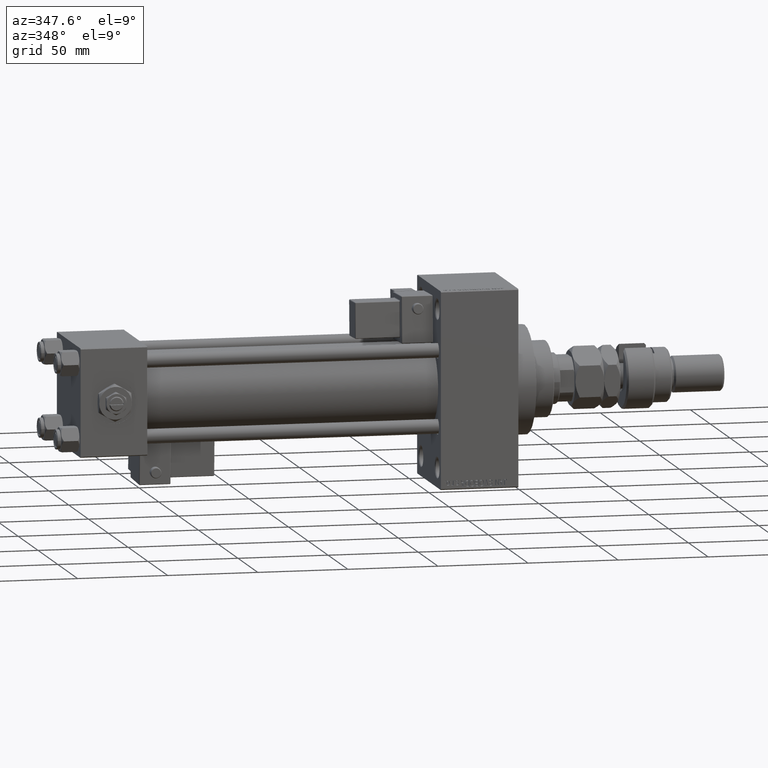
[diagram: clean part render]
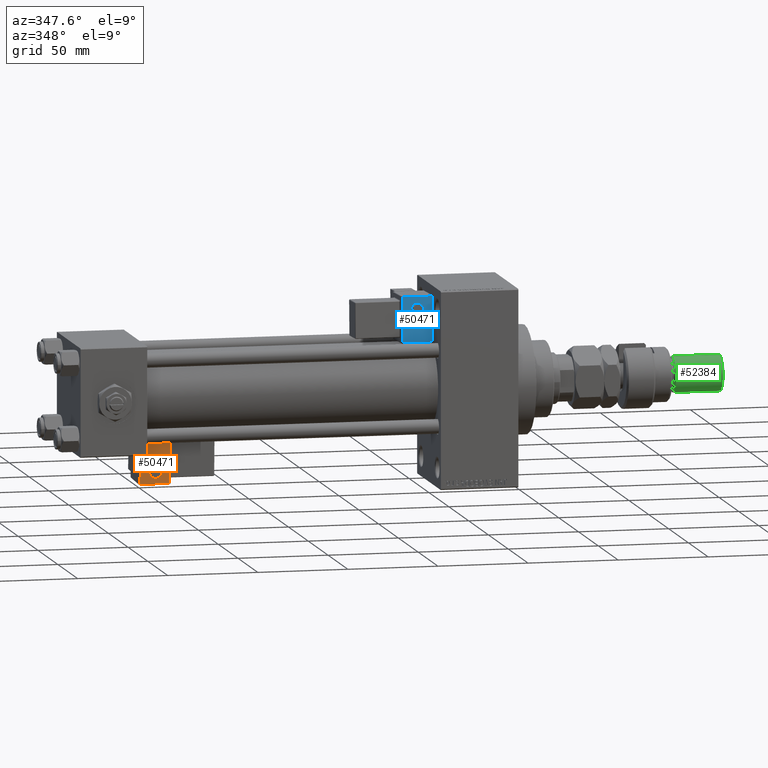
[diagram: same view with three faces highlighted in distinct colors, each labeled with its STEP entity id]
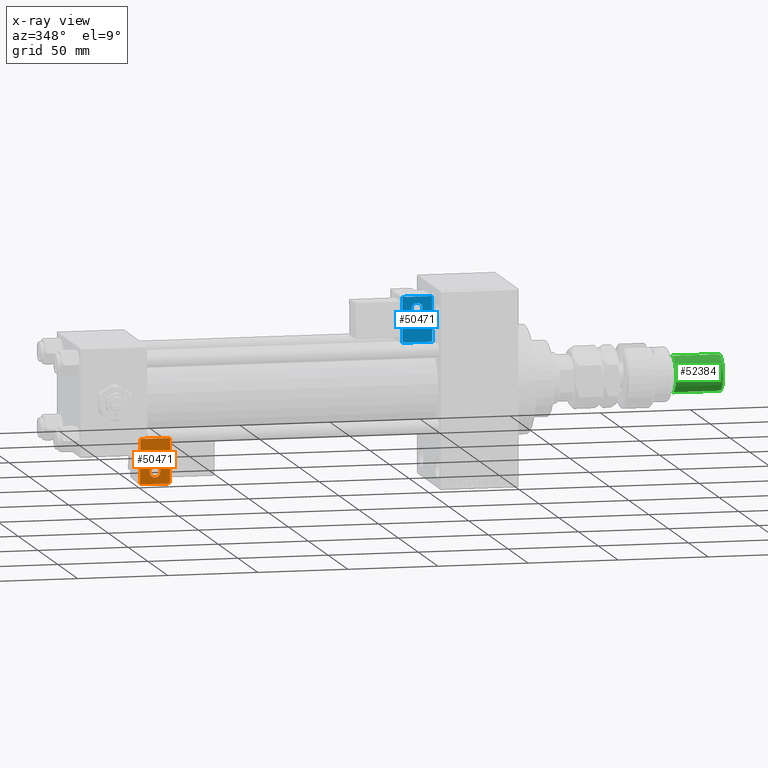
[diagram: x-ray of the same camera — body ghosted, the three highlighted faces saturated]
A machine part, auxiliary view with three faces highlighted in distinct colors.
The next image is the same camera in x-ray (body ghosted, the three faces saturated) — at least one of them is partly hidden behind the body in this view.
Their STEP definitions:

[orange] entity #50471 — the highlighted planar face has unit normal (0, 0.9994, 0.0353).
#618 = VERTEX_POINT ( 'NONE', #50955 ) ;
#663 = DIRECTION ( 'NONE',  ( -1.000000000000000000, 0.000000000000000000, 1.982541115402065110E-16 ) ) ;
#848 = DIRECTION ( 'NONE',  ( 0.000000000000000000, 0.000000000000000000, 1.000000000000000000 ) ) ;
#3415 = VERTEX_POINT ( 'NONE', #35907 ) ;
#6098 = EDGE_CURVE ( 'NONE', #18324, #618, #31426, .T. ) ;
#8283 = AXIS2_PLACEMENT_3D ( 'NONE', #36103, #11222, #35822 ) ;
#10145 = CARTESIAN_POINT ( 'NONE',  ( -4.336808689942017736E-16, -35.75000000000000000, 6.000000000000001776 ) ) ;
#10300 = EDGE_CURVE ( 'NONE', #12861, #11008, #50192, .T. ) ;
#10785 = CARTESIAN_POINT ( 'NONE',  ( -4.336808689942017736E-16, -35.75000000000000000, 9.000000000000001776 ) ) ;
#11008 = VERTEX_POINT ( 'NONE', #17275 ) ;
#11194 = EDGE_CURVE ( 'NONE', #11008, #12861, #29366, .T. ) ;
#11222 = DIRECTION ( 'NONE',  ( -0.000000000000000000, -1.000000000000000000, -0.000000000000000000 ) ) ;
#11412 = ORIENTED_EDGE ( 'NONE', *, *, #6098, .T. ) ;
#12417 = VECTOR ( 'NONE', #663, 1000.000000000000000 ) ;
#12861 = VERTEX_POINT ( 'NONE', #10785 ) ;
#16818 = VECTOR ( 'NONE', #27340, 1000.000000000000000 ) ;
#17275 = CARTESIAN_POINT ( 'NONE',  ( -6.628682924999581145E-17, -35.75000000000000000, 3.000000000000001776 ) ) ;
#18012 = LINE ( 'NONE', #34669, #52235 ) ;
#18324 = VERTEX_POINT ( 'NONE', #31599 ) ;
#18462 = EDGE_CURVE ( 'NONE', #618, #3415, #21191, .T. ) ;
#18496 = ORIENTED_EDGE ( 'NONE', *, *, #35431, .T. ) ;
#20753 = DIRECTION ( 'NONE',  ( 0.000000000000000000, 1.000000000000000000, 0.000000000000000000 ) ) ;
#21191 = LINE ( 'NONE', #38114, #12417 ) ;
#21236 = EDGE_LOOP ( 'NONE', ( #25707, #18496, #45104, #11412 ) ) ;
#25707 = ORIENTED_EDGE ( 'NONE', *, *, #18462, .T. ) ;
#26823 = DIRECTION ( 'NONE',  ( -0.000000000000000000, -1.000000000000000000, -0.000000000000000000 ) ) ;
#27340 = DIRECTION ( 'NONE',  ( -1.334402673828313339E-16, 0.000000000000000000, 1.000000000000000000 ) ) ;
#29366 = CIRCLE ( 'NONE', #41598, 2.999999999999999112 ) ;
#29457 = FACE_OUTER_BOUND ( 'NONE', #21236, .T. ) ;
#29928 = LINE ( 'NONE', #38399, #35011 ) ;
#31426 = LINE ( 'NONE', #48107, #16818 ) ;
#31599 = CARTESIAN_POINT ( 'NONE',  ( 8.250000000000003553, -35.75000000000000000, -0.5000000000000002220 ) ) ;
#33046 = DIRECTION ( 'NONE',  ( 0.000000000000000000, -0.000000000000000000, 1.000000000000000000 ) ) ;
#34569 = ORIENTED_EDGE ( 'NONE', *, *, #10300, .F. ) ;
#34669 = CARTESIAN_POINT ( 'NONE',  ( -8.250000000000003553, -35.75000000000000000, 1.100882205908358788E-15 ) ) ;
#35011 = VECTOR ( 'NONE', #43335, 1000.000000000000000 ) ;
#35431 = EDGE_CURVE ( 'NONE', #3415, #35642, #18012, .T. ) ;
#35642 = VERTEX_POINT ( 'NONE', #46625 ) ;
#35822 = DIRECTION ( 'NONE',  ( 0.000000000000000000, 0.000000000000000000, 1.000000000000000000 ) ) ;
#35907 = CARTESIAN_POINT ( 'NONE',  ( -8.250000000000000000, -35.75000000000000000, 24.50000000000000355 ) ) ;
#36103 = CARTESIAN_POINT ( 'NONE',  ( -4.336808689942017736E-16, -35.75000000000000000, 6.000000000000001776 ) ) ;
#36782 = AXIS2_PLACEMENT_3D ( 'NONE', #37940, #20753, #33046 ) ;
#37249 = EDGE_LOOP ( 'NONE', ( #34569, #48379 ) ) ;
#37940 = CARTESIAN_POINT ( 'NONE',  ( 0.000000000000000000, -35.75000000000000000, 0.000000000000000000 ) ) ;
#38114 = CARTESIAN_POINT ( 'NONE',  ( 4.857225732735059864E-15, -35.75000000000000000, 24.50000000000000000 ) ) ;
#38399 = CARTESIAN_POINT ( 'NONE',  ( 0.000000000000000000, -35.75000000000000000, -0.5000000000000002220 ) ) ;
#41516 = PLANE ( 'NONE',  #36782 ) ;
#41598 = AXIS2_PLACEMENT_3D ( 'NONE', #10145, #26823, #848 ) ;
#43335 = DIRECTION ( 'NONE',  ( 1.000000000000000000, 0.000000000000000000, 0.000000000000000000 ) ) ;
#45104 = ORIENTED_EDGE ( 'NONE', *, *, #46701, .T. ) ;
#46625 = CARTESIAN_POINT ( 'NONE',  ( -8.250000000000003553, -35.75000000000000000, -0.5000000000000002220 ) ) ;
#46701 = EDGE_CURVE ( 'NONE', #35642, #18324, #29928, .T. ) ;
#48107 = CARTESIAN_POINT ( 'NONE',  ( 8.250000000000003553, -35.75000000000000000, 1.100882205908358986E-15 ) ) ;
#48379 = ORIENTED_EDGE ( 'NONE', *, *, #11194, .F. ) ;
#49981 = FACE_BOUND ( 'NONE', #37249, .T. ) ;
#50192 = CIRCLE ( 'NONE', #8283, 2.999999999999999112 ) ;
#50471 = ADVANCED_FACE ( 'NONE', ( #29457, #49981 ), #41516, .F. ) ;
#50788 = DIRECTION ( 'NONE',  ( -1.334402673828313093E-16, 0.000000000000000000, -1.000000000000000000 ) ) ;
#50955 = CARTESIAN_POINT ( 'NONE',  ( 8.250000000000000000, -35.75000000000000000, 24.50000000000000000 ) ) ;
#52235 = VECTOR ( 'NONE', #50788, 1000.000000000000000 ) ;

[blue] entity #50471 — the highlighted planar face has unit normal (0, 0.9994, -0.0353).
#618 = VERTEX_POINT ( 'NONE', #50955 ) ;
#663 = DIRECTION ( 'NONE',  ( -1.000000000000000000, 0.000000000000000000, 1.982541115402065110E-16 ) ) ;
#848 = DIRECTION ( 'NONE',  ( 0.000000000000000000, 0.000000000000000000, 1.000000000000000000 ) ) ;
#3415 = VERTEX_POINT ( 'NONE', #35907 ) ;
#6098 = EDGE_CURVE ( 'NONE', #18324, #618, #31426, .T. ) ;
#8283 = AXIS2_PLACEMENT_3D ( 'NONE', #36103, #11222, #35822 ) ;
#10145 = CARTESIAN_POINT ( 'NONE',  ( -4.336808689942017736E-16, -35.75000000000000000, 6.000000000000001776 ) ) ;
#10300 = EDGE_CURVE ( 'NONE', #12861, #11008, #50192, .T. ) ;
#10785 = CARTESIAN_POINT ( 'NONE',  ( -4.336808689942017736E-16, -35.75000000000000000, 9.000000000000001776 ) ) ;
#11008 = VERTEX_POINT ( 'NONE', #17275 ) ;
#11194 = EDGE_CURVE ( 'NONE', #11008, #12861, #29366, .T. ) ;
#11222 = DIRECTION ( 'NONE',  ( -0.000000000000000000, -1.000000000000000000, -0.000000000000000000 ) ) ;
#11412 = ORIENTED_EDGE ( 'NONE', *, *, #6098, .T. ) ;
#12417 = VECTOR ( 'NONE', #663, 1000.000000000000000 ) ;
#12861 = VERTEX_POINT ( 'NONE', #10785 ) ;
#16818 = VECTOR ( 'NONE', #27340, 1000.000000000000000 ) ;
#17275 = CARTESIAN_POINT ( 'NONE',  ( -6.628682924999581145E-17, -35.75000000000000000, 3.000000000000001776 ) ) ;
#18012 = LINE ( 'NONE', #34669, #52235 ) ;
#18324 = VERTEX_POINT ( 'NONE', #31599 ) ;
#18462 = EDGE_CURVE ( 'NONE', #618, #3415, #21191, .T. ) ;
#18496 = ORIENTED_EDGE ( 'NONE', *, *, #35431, .T. ) ;
#20753 = DIRECTION ( 'NONE',  ( 0.000000000000000000, 1.000000000000000000, 0.000000000000000000 ) ) ;
#21191 = LINE ( 'NONE', #38114, #12417 ) ;
#21236 = EDGE_LOOP ( 'NONE', ( #25707, #18496, #45104, #11412 ) ) ;
#25707 = ORIENTED_EDGE ( 'NONE', *, *, #18462, .T. ) ;
#26823 = DIRECTION ( 'NONE',  ( -0.000000000000000000, -1.000000000000000000, -0.000000000000000000 ) ) ;
#27340 = DIRECTION ( 'NONE',  ( -1.334402673828313339E-16, 0.000000000000000000, 1.000000000000000000 ) ) ;
#29366 = CIRCLE ( 'NONE', #41598, 2.999999999999999112 ) ;
#29457 = FACE_OUTER_BOUND ( 'NONE', #21236, .T. ) ;
#29928 = LINE ( 'NONE', #38399, #35011 ) ;
#31426 = LINE ( 'NONE', #48107, #16818 ) ;
#31599 = CARTESIAN_POINT ( 'NONE',  ( 8.250000000000003553, -35.75000000000000000, -0.5000000000000002220 ) ) ;
#33046 = DIRECTION ( 'NONE',  ( 0.000000000000000000, -0.000000000000000000, 1.000000000000000000 ) ) ;
#34569 = ORIENTED_EDGE ( 'NONE', *, *, #10300, .F. ) ;
#34669 = CARTESIAN_POINT ( 'NONE',  ( -8.250000000000003553, -35.75000000000000000, 1.100882205908358788E-15 ) ) ;
#35011 = VECTOR ( 'NONE', #43335, 1000.000000000000000 ) ;
#35431 = EDGE_CURVE ( 'NONE', #3415, #35642, #18012, .T. ) ;
#35642 = VERTEX_POINT ( 'NONE', #46625 ) ;
#35822 = DIRECTION ( 'NONE',  ( 0.000000000000000000, 0.000000000000000000, 1.000000000000000000 ) ) ;
#35907 = CARTESIAN_POINT ( 'NONE',  ( -8.250000000000000000, -35.75000000000000000, 24.50000000000000355 ) ) ;
#36103 = CARTESIAN_POINT ( 'NONE',  ( -4.336808689942017736E-16, -35.75000000000000000, 6.000000000000001776 ) ) ;
#36782 = AXIS2_PLACEMENT_3D ( 'NONE', #37940, #20753, #33046 ) ;
#37249 = EDGE_LOOP ( 'NONE', ( #34569, #48379 ) ) ;
#37940 = CARTESIAN_POINT ( 'NONE',  ( 0.000000000000000000, -35.75000000000000000, 0.000000000000000000 ) ) ;
#38114 = CARTESIAN_POINT ( 'NONE',  ( 4.857225732735059864E-15, -35.75000000000000000, 24.50000000000000000 ) ) ;
#38399 = CARTESIAN_POINT ( 'NONE',  ( 0.000000000000000000, -35.75000000000000000, -0.5000000000000002220 ) ) ;
#41516 = PLANE ( 'NONE',  #36782 ) ;
#41598 = AXIS2_PLACEMENT_3D ( 'NONE', #10145, #26823, #848 ) ;
#43335 = DIRECTION ( 'NONE',  ( 1.000000000000000000, 0.000000000000000000, 0.000000000000000000 ) ) ;
#45104 = ORIENTED_EDGE ( 'NONE', *, *, #46701, .T. ) ;
#46625 = CARTESIAN_POINT ( 'NONE',  ( -8.250000000000003553, -35.75000000000000000, -0.5000000000000002220 ) ) ;
#46701 = EDGE_CURVE ( 'NONE', #35642, #18324, #29928, .T. ) ;
#48107 = CARTESIAN_POINT ( 'NONE',  ( 8.250000000000003553, -35.75000000000000000, 1.100882205908358986E-15 ) ) ;
#48379 = ORIENTED_EDGE ( 'NONE', *, *, #11194, .F. ) ;
#49981 = FACE_BOUND ( 'NONE', #37249, .T. ) ;
#50192 = CIRCLE ( 'NONE', #8283, 2.999999999999999112 ) ;
#50471 = ADVANCED_FACE ( 'NONE', ( #29457, #49981 ), #41516, .F. ) ;
#50788 = DIRECTION ( 'NONE',  ( -1.334402673828313093E-16, 0.000000000000000000, -1.000000000000000000 ) ) ;
#50955 = CARTESIAN_POINT ( 'NONE',  ( 8.250000000000000000, -35.75000000000000000, 24.50000000000000000 ) ) ;
#52235 = VECTOR ( 'NONE', #50788, 1000.000000000000000 ) ;

[green] entity #52384 — the highlighted cylindrical surface (edge-blend (fillet) strip) has radius 10 mm, axis along (-1, -0, 0).
#386 = CARTESIAN_POINT ( 'NONE',  ( 10.00000000000000000, 1.224646799147353256E-15, 29.00000000000000711 ) ) ;
#571 = AXIS2_PLACEMENT_3D ( 'NONE', #6258, #19118, #2689 ) ;
#2529 = ORIENTED_EDGE ( 'NONE', *, *, #11480, .T. ) ;
#2537 = ORIENTED_EDGE ( 'NONE', *, *, #30579, .T. ) ;
#2689 = DIRECTION ( 'NONE',  ( 1.000000000000000000, 0.000000000000000000, 0.000000000000000000 ) ) ;
#6258 = CARTESIAN_POINT ( 'NONE',  ( 0.000000000000000000, 0.000000000000000000, 54.99999999999998579 ) ) ;
#6595 = DIRECTION ( 'NONE',  ( -0.000000000000000000, -0.000000000000000000, -1.000000000000000000 ) ) ;
#6671 = AXIS2_PLACEMENT_3D ( 'NONE', #51998, #42989, #21681 ) ;
#9253 = VECTOR ( 'NONE', #6595, 1000.000000000000000 ) ;
#10523 = DIRECTION ( 'NONE',  ( -1.000000000000000000, 0.000000000000000000, 0.000000000000000000 ) ) ;
#11340 = CYLINDRICAL_SURFACE ( 'NONE', #29002, 10.00000000000000000 ) ;
#11480 = EDGE_CURVE ( 'NONE', #39855, #22857, #40741, .T. ) ;
#12266 = DIRECTION ( 'NONE',  ( -0.000000000000000000, -0.000000000000000000, -1.000000000000000000 ) ) ;
#12631 = ORIENTED_EDGE ( 'NONE', *, *, #50532, .F. ) ;
#15069 = LINE ( 'NONE', #27895, #9253 ) ;
#15422 = CIRCLE ( 'NONE', #6671, 10.00000000000000000 ) ;
#17834 = VERTEX_POINT ( 'NONE', #37038 ) ;
#18760 = FACE_OUTER_BOUND ( 'NONE', #26601, .T. ) ;
#19118 = DIRECTION ( 'NONE',  ( 0.000000000000000000, 0.000000000000000000, -1.000000000000000000 ) ) ;
#21475 = CARTESIAN_POINT ( 'NONE',  ( -10.00000000000000000, 0.000000000000000000, 54.99999999999998579 ) ) ;
#21681 = DIRECTION ( 'NONE',  ( 1.000000000000000000, 0.000000000000000000, 0.000000000000000000 ) ) ;
#22857 = VERTEX_POINT ( 'NONE', #21475 ) ;
#23584 = VERTEX_POINT ( 'NONE', #386 ) ;
#26601 = EDGE_LOOP ( 'NONE', ( #12631, #2529, #45429, #2537 ) ) ;
#27482 = DIRECTION ( 'NONE',  ( -0.000000000000000000, -0.000000000000000000, -1.000000000000000000 ) ) ;
#27895 = CARTESIAN_POINT ( 'NONE',  ( -10.00000000000000000, 0.000000000000000000, 56.00000000000000711 ) ) ;
#29002 = AXIS2_PLACEMENT_3D ( 'NONE', #48793, #27482, #10523 ) ;
#30579 = EDGE_CURVE ( 'NONE', #17834, #23584, #15422, .T. ) ;
#35910 = VECTOR ( 'NONE', #12266, 1000.000000000000000 ) ;
#36252 = EDGE_CURVE ( 'NONE', #22857, #17834, #15069, .T. ) ;
#37038 = CARTESIAN_POINT ( 'NONE',  ( -10.00000000000000000, 0.000000000000000000, 29.00000000000000711 ) ) ;
#37156 = CARTESIAN_POINT ( 'NONE',  ( 10.00000000000000000, 1.224646799147353256E-15, 56.00000000000000711 ) ) ;
#39855 = VERTEX_POINT ( 'NONE', #40981 ) ;
#40741 = CIRCLE ( 'NONE', #571, 10.00000000000000000 ) ;
#40981 = CARTESIAN_POINT ( 'NONE',  ( 10.00000000000000000, 1.224646799147353256E-15, 54.99999999999998579 ) ) ;
#42989 = DIRECTION ( 'NONE',  ( -0.000000000000000000, -0.000000000000000000, 1.000000000000000000 ) ) ;
#45429 = ORIENTED_EDGE ( 'NONE', *, *, #36252, .T. ) ;
#48793 = CARTESIAN_POINT ( 'NONE',  ( 0.000000000000000000, 0.000000000000000000, 56.00000000000000711 ) ) ;
#49448 = LINE ( 'NONE', #37156, #35910 ) ;
#50532 = EDGE_CURVE ( 'NONE', #39855, #23584, #49448, .T. ) ;
#51998 = CARTESIAN_POINT ( 'NONE',  ( 0.000000000000000000, 0.000000000000000000, 29.00000000000000711 ) ) ;
#52384 = ADVANCED_FACE ( 'NONE', ( #18760 ), #11340, .T. ) ;